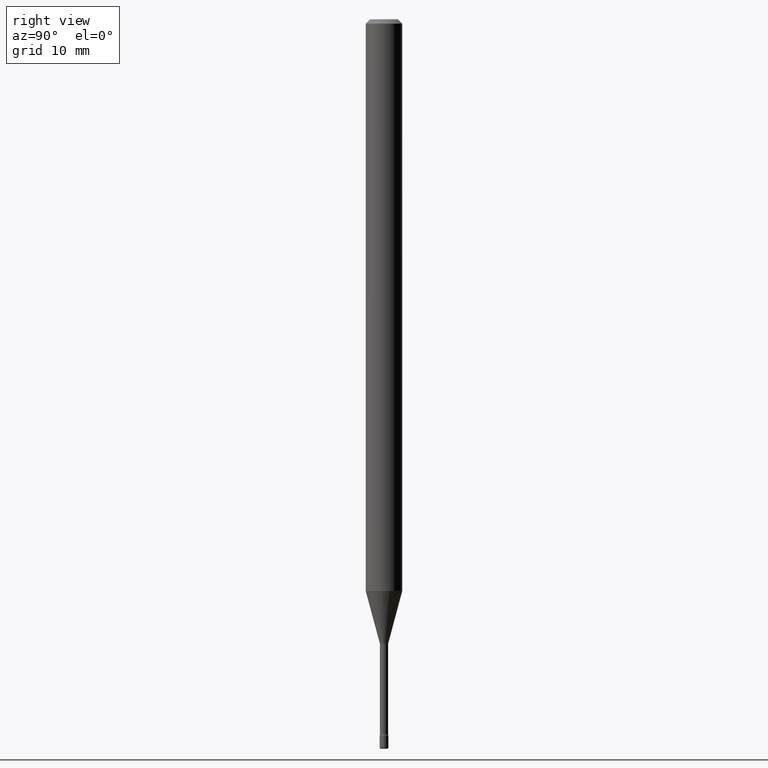
[diagram: clean part render]
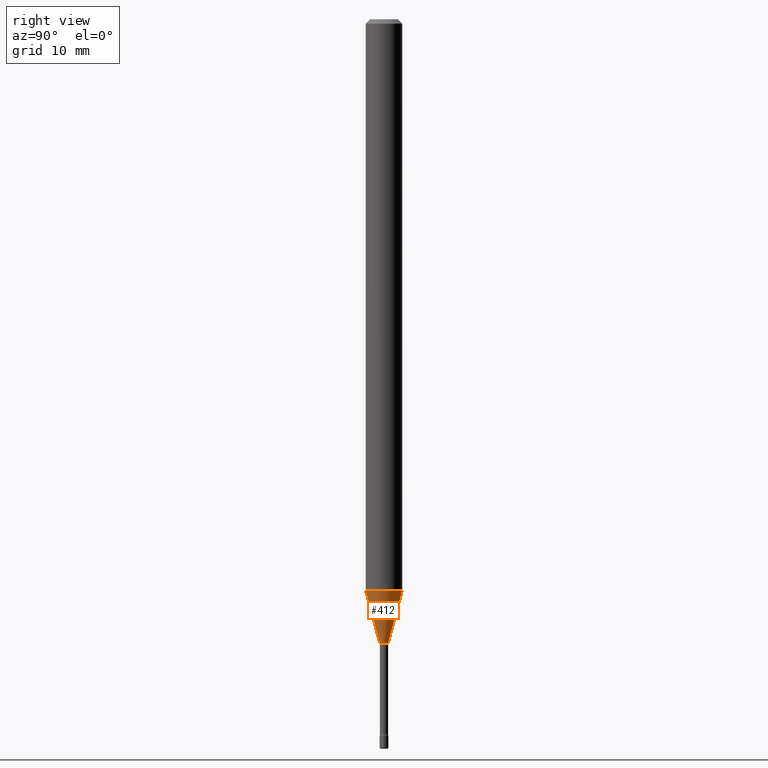
[diagram: same view with one face highlighted and labeled with its STEP entity id]
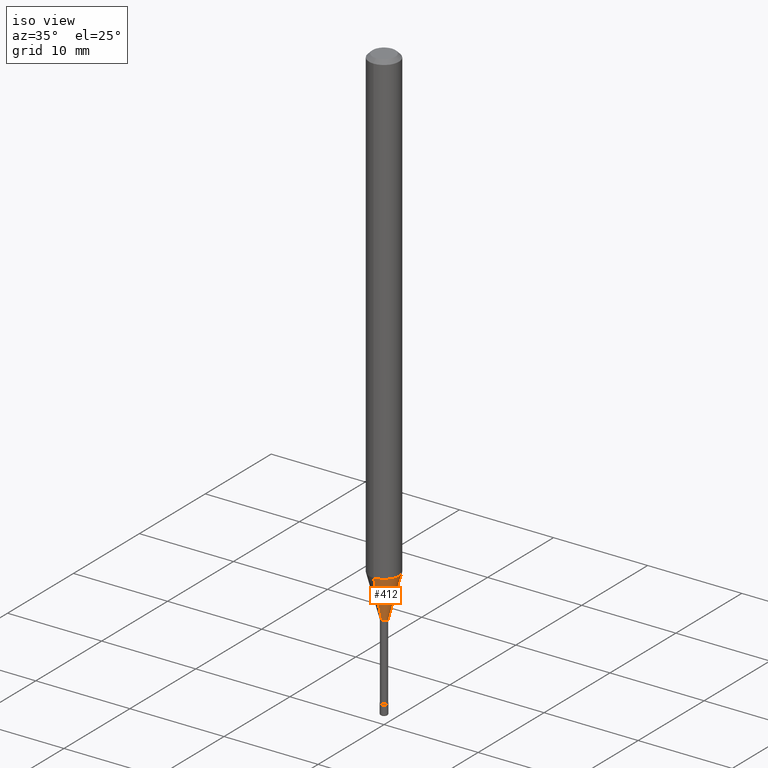
[diagram: same view with one face highlighted and labeled with its STEP entity id]
A machine part, right view. The second image highlights one B-rep face of the part: STEP entity #412.
A second angle (iso view) of the same face is appended — the face is thin or edge-on in the first view.
In plain terms, the highlighted conical surface has half-angle 15 deg.
Its self-contained STEP definition (entity closure, byte-faithful):
#10 = DIRECTION ( 'NONE',  ( -2.445522679557193987E-29, 3.491404189108077503E-15, 1.000000000000000000 ) ) ;
#18 = EDGE_CURVE ( 'NONE', #458, #172, #210, .T. ) ;
#20 = CARTESIAN_POINT ( 'NONE',  ( -1.020288540047705920E-16, -0.01461111260567144257, -2.138092501787273392 ) ) ;
#21 = EDGE_LOOP ( 'NONE', ( #58, #389, #132, #30 ) ) ;
#30 = ORIENTED_EDGE ( 'NONE', *, *, #447, .F. ) ;
#32 = VERTEX_POINT ( 'NONE', #364 ) ;
#58 = ORIENTED_EDGE ( 'NONE', *, *, #18, .T. ) ;
#100 = FACE_OUTER_BOUND ( 'NONE', #21, .T. ) ;
#132 = ORIENTED_EDGE ( 'NONE', *, *, #544, .F. ) ;
#134 = VERTEX_POINT ( 'NONE', #171 ) ;
#144 = CARTESIAN_POINT ( 'NONE',  ( 1.038181992333259507E-16, 0.01461111260565651181, -2.138092501787273392 ) ) ;
#147 = DIRECTION ( 'NONE',  ( -1.807323732225328562E-15, -0.2588190451025179639, 0.9659258262890689783 ) ) ;
#171 = CARTESIAN_POINT ( 'NONE',  ( 4.440892098501102436E-16, 0.06249999999999313743, -1.959368740913667306 ) ) ;
#172 = VERTEX_POINT ( 'NONE', #220 ) ;
#176 = VECTOR ( 'NONE', #147, 39.37007874015749564 ) ;
#188 = VECTOR ( 'NONE', #531, 39.37007874015747433 ) ;
#191 = DIRECTION ( 'NONE',  ( -2.445522679557193987E-29, 3.491404189108077503E-15, 1.000000000000000000 ) ) ;
#210 = CIRCLE ( 'NONE', #532, 0.01461111260566397632 ) ;
#220 = CARTESIAN_POINT ( 'NONE',  ( 2.739537045417182759E-16, 0.01461111260565651181, -2.138092501787273392 ) ) ;
#237 = DIRECTION ( 'NONE',  ( -6.982962677686265922E-15, -1.000000000000000000, 0.000000000000000000 ) ) ;
#246 = AXIS2_PLACEMENT_3D ( 'NONE', #274, #10, #537 ) ;
#274 = CARTESIAN_POINT ( 'NONE',  ( 5.228753704111956523E-29, -7.464945117440654423E-15, -2.138092501787273392 ) ) ;
#290 = DIRECTION ( 'NONE',  ( -2.445522679557193987E-29, 3.491404189108077503E-15, 1.000000000000000000 ) ) ;
#314 = LINE ( 'NONE', #365, #176 ) ;
#364 = CARTESIAN_POINT ( 'NONE',  ( -4.364351673553436475E-16, -0.06250000000000684175, -1.959368740913666640 ) ) ;
#365 = CARTESIAN_POINT ( 'NONE',  ( -1.020288540047705920E-16, -0.01461111260567144257, -2.138092501787273392 ) ) ;
#389 = ORIENTED_EDGE ( 'NONE', *, *, #417, .T. ) ;
#392 = LINE ( 'NONE', #144, #188 ) ;
#412 = ADVANCED_FACE ( 'NONE', ( #100 ), #551, .T. ) ;
#416 = CIRCLE ( 'NONE', #467, 0.06250000000000000000 ) ;
#417 = EDGE_CURVE ( 'NONE', #172, #134, #392, .T. ) ;
#447 = EDGE_CURVE ( 'NONE', #458, #32, #314, .T. ) ;
#457 = DIRECTION ( 'NONE',  ( -6.982962677686265922E-15, -1.000000000000000000, 4.370956789862821150E-15 ) ) ;
#458 = VERTEX_POINT ( 'NONE', #20 ) ;
#464 = CARTESIAN_POINT ( 'NONE',  ( 5.228753704111956523E-29, -7.464945117440654423E-15, -2.138092501787273392 ) ) ;
#467 = AXIS2_PLACEMENT_3D ( 'NONE', #503, #191, #457 ) ;
#503 = CARTESIAN_POINT ( 'NONE',  ( 4.791680693519795909E-29, -6.840948230033396805E-15, -1.959368740913666862 ) ) ;
#531 = DIRECTION ( 'NONE',  ( 1.839019923739599526E-15, 0.2588190451025248473, 0.9659258262890673130 ) ) ;
#532 = AXIS2_PLACEMENT_3D ( 'NONE', #464, #290, #237 ) ;
#537 = DIRECTION ( 'NONE',  ( -6.982962677686265922E-15, -1.000000000000000000, 0.000000000000000000 ) ) ;
#544 = EDGE_CURVE ( 'NONE', #32, #134, #416, .T. ) ;
#551 = CONICAL_SURFACE ( 'NONE', #246, 0.01461111260566397632, 0.2617993877991501295 ) ;